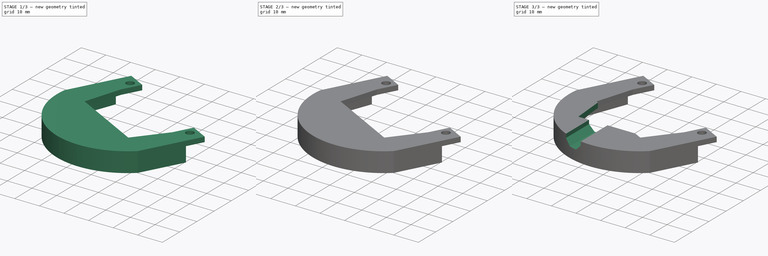
[diagram: build sequence overview — one tinted view per stage of 3, left to right]
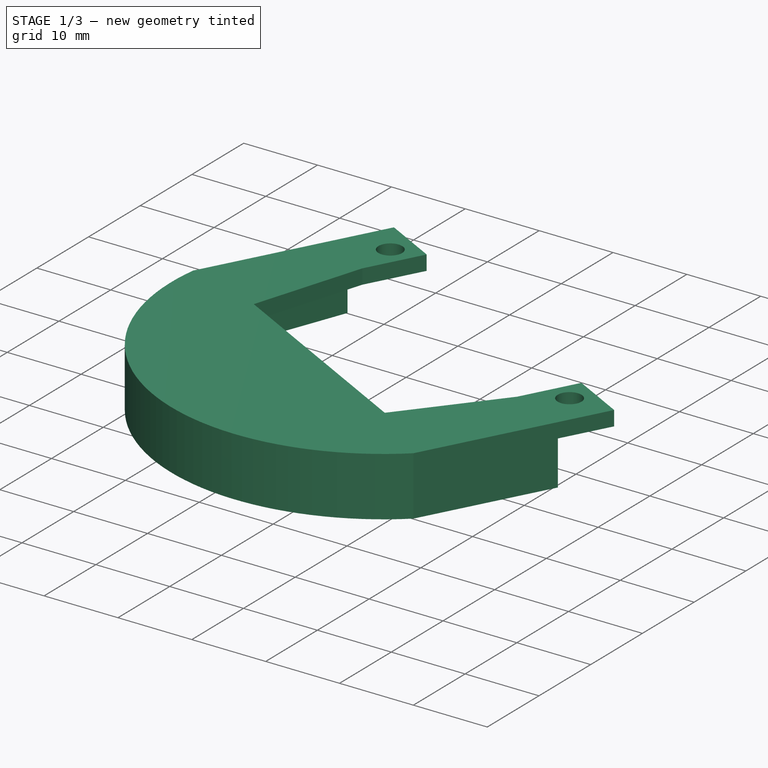
[diagram: stage 1 of 3 — iso view after this stage's code; geometry added in this stage tinted green]
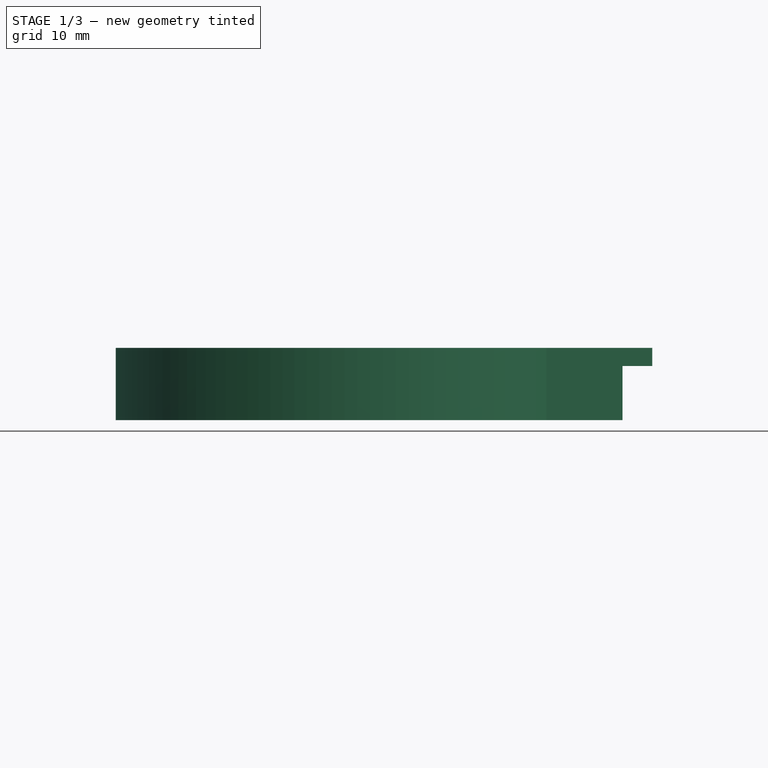
[diagram: stage 1 of 3 — front view after this stage's code; geometry added in this stage tinted green]
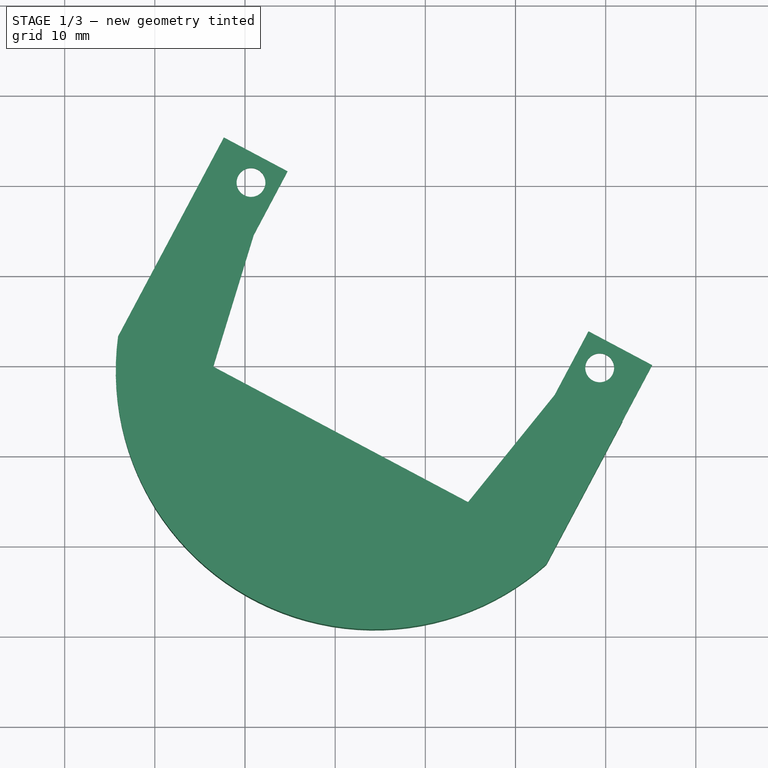
[diagram: stage 1 of 3 — top view after this stage's code; geometry added in this stage tinted green]
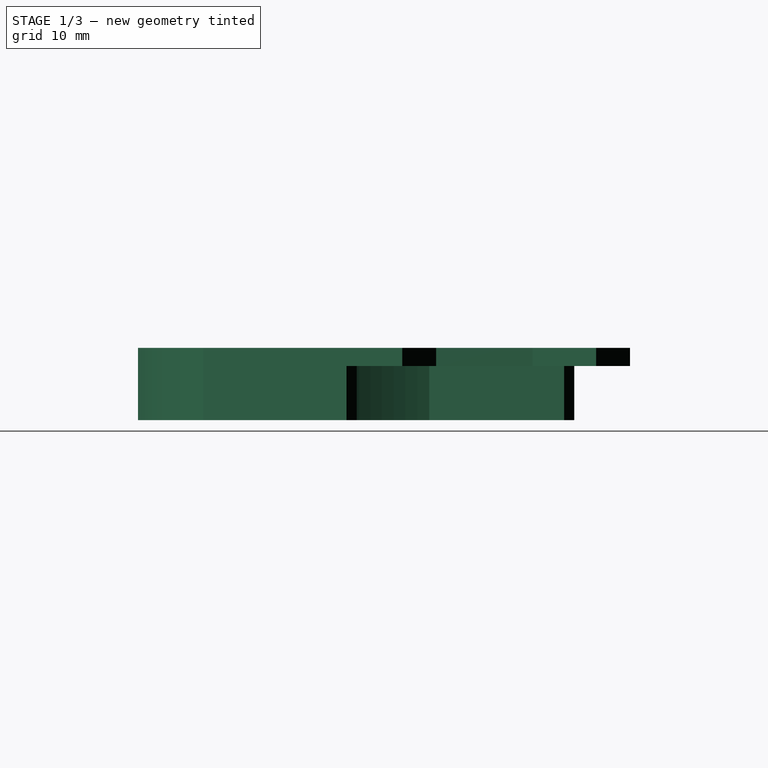
[diagram: stage 1 of 3 — right view after this stage's code; geometry added in this stage tinted green]
FCSTD DOCUMENT  (FreeCAD 0.19R)
Label: UmbilicalStrainReleif2
License: All rights reserved
LicenseURL: http://en.wikipedia.org/wiki/All_rights_reserved
objects: Sketcher::SketchObject×5, PartDesign::Pocket×3, PartDesign::Pad×2, PartDesign::Body×1
note: 16 computed .brp shape members not serialized (recipe doc carries the construction recipe); baked Part::Feature solids carry a one-line shape summary decoded from their .brp

FEATURE [Sketcher::SketchObject] Sketch
  FullyConstrained = false
  MapMode = 5
  Placement = pos=(0,4e-14,34.3878) rot=(0,0,1;3.14159rad)
  sketch-geometry (14):
    g0: Circle CenterX=-19.3366 CenterY=10.2814 CenterZ=0 NormalX=0 NormalY=0 NormalZ=1 AngleXU=0 Radius=1.6
    g1: Circle CenterX=19.3366 CenterY=-10.2814 CenterZ=0 NormalX=0 NormalY=0 NormalZ=1 AngleXU=0 Radius=1.6
    g2: LineSegment StartX=-19.3366 StartY=10.2814 StartZ=0 EndX=19.3366 EndY=-10.2814 EndZ=0
    g3: LineSegment StartX=-25.1597 StartY=9.97994 StartZ=0 EndX=-13.4229 EndY=32.0536 EndZ=0
    g4: LineSegment StartX=34.0797 StartY=6.79606 StartZ=0 EndX=22.3429 EndY=-15.2776 EndZ=0
    g5: LineSegment StartX=22.3429 StartY=-15.2776 StartZ=0 EndX=15.2793 EndY=-11.5219 EndZ=0
    g6: LineSegment StartX=23.5166 StartY=10.1474 StartZ=0 EndX=-4.73773 EndY=25.1705 EndZ=0
    g7: LineSegment StartX=-18.0961 StartY=6.22417 StartZ=0 EndX=-25.1597 EndY=9.97994 EndZ=0
    g8: LineSegment StartX=15.2793 StartY=-11.5219 StartZ=0 EndX=19.0351 EndY=-4.45827 EndZ=0
    g9: LineSegment StartX=19.0351 StartY=-4.45827 StartZ=0 EndX=23.5166 EndY=10.1474 EndZ=0
    g10: LineSegment StartX=-18.0961 StartY=6.22417 StartZ=0 EndX=-14.3404 EndY=13.2878 EndZ=0
    g11: LineSegment StartX=-14.3404 StartY=13.2878 StartZ=0 EndX=-4.73773 EndY=25.1705 EndZ=0
    g12: LineSegment StartX=0 StartY=0 StartZ=0 EndX=21.8903 EndY=41.1697 EndZ=0
    g13: ArcOfCircle CenterX=5.63366 CenterY=10.5954 CenterZ=0 NormalX=0 NormalY=0 NormalZ=1 AngleXU=0 Radius=28.6986 StartAngle=6.15041 EndAngle=8.58017
  constraints (38):
    c: Distance(g1,g0) = 43.8
    c: Symmetric(g1,g0,g-1)
    c: Coincident(g2,g0)
    c: Coincident(g2,g1)
    c: Angle(g2) = -0.488692
    c: Coincident(g4,g5)
    c: Coincident(g7,g3)
    c: Diameter(g1) = 3.2
    c: Equal(g1,g0)
    c: Distance(g1,g5) = 3
    c: Distance(g0,g7) = 3
    c: Parallel(g5,g2)
    c: Parallel(g7,g2)
    c: Distance(g5) = 8
    c: Distance(g7) = 8
    c: Parallel(g6,g2)
    c: Distance(g6,g2) = 20
    c: Coincident(g5,g8)
    c: Coincident(g8,g9)
    c: Coincident(g9,g6)
    c: Coincident(g7,g10)
    c: Coincident(g10,g11)
    c: Coincident(g11,g6)
    c: Coincident(g12,g-1)
    c: Symmetric(g6,g6,g12)
    c: Distance(g6) = 32
    c: Perpendicular(g2,g8)
    c: Perpendicular(g2,g10)
    c: Distance(g1,g8) = 3
    c: Distance(g0,g10) = 3
    c: Symmetric(g4,g3,g12)
    c: Distance(g10) = 8
    c: Distance(g8) = 8
    c: Perpendicular(g2,g4)
    c: Distance(g4) = 25
    c: Coincident(g13,g3)
    c: Coincident(g4,g13)
    c: Distance(g-1,g13) = 12
FEATURE [PartDesign::Pad] Pad
  Direction = (1,1,1)
  Length = 8
  Length2 = 100
  Placement = pos=(0,4e-14,34.3878) rot=(0,0,1;3.14159rad)
  Profile = -> Sketch
  Type = 0
FEATURE [Sketcher::SketchObject] Sketch001
  FullyConstrained = true
  MapMode = 5
  Placement = pos=(0,4e-14,34.3878) rot=(0,1,0;3.14159rad)
  Support = -> [Pad]
  sketch-geometry (4):
    g0: LineSegment StartX=5 StartY=-22 StartZ=0 EndX=23 EndY=-22 EndZ=0
    g1: LineSegment StartX=23 StartY=-22 StartZ=0 EndX=23 EndY=-32 EndZ=0
    g2: LineSegment StartX=23 StartY=-32 StartZ=0 EndX=5 EndY=-32 EndZ=0
    g3: LineSegment StartX=5 StartY=-32 StartZ=0 EndX=5 EndY=-22 EndZ=0
  constraints (12):
    c: Coincident(g0,g1)
    c: Coincident(g1,g2)
    c: Coincident(g2,g3)
    c: Coincident(g3,g0)
    c: Horizontal(g0)
    c: Horizontal(g2)
    c: Vertical(g1)
    c: Vertical(g3)
    c: Distance(g0) = 18
    c: Distance(g1) = 10
    c: DistanceX(g0) = 5
    c: DistanceY(g0) = -22
FEATURE [Sketcher::SketchObject] Sketch004
  ExternalGeometry = -> [Pad]
  FullyConstrained = true
  MapMode = 5
  Placement = pos=(0,4e-14,34.3878) rot=(0,1,0;3.14159rad)
  sketch-geometry (10):
    g0: ArcOfCircle CenterX=1.87789 CenterY=-3.53179 CenterZ=0 NormalX=0 NormalY=0 NormalZ=1 AngleXU=0 Radius=27.5363 StartAngle=4.24472 EndAngle=6.15745
    g1: LineSegment StartX=23.5101 StartY=7.97026 StartZ=0 EndX=29.1968 EndY=-6.98504 EndZ=0
    g2: LineSegment StartX=-19.7543 StartY=-15.0338 StartZ=0 EndX=-10.5358 EndY=-28.1113 EndZ=0
    g3: LineSegment StartX=23.5101 StartY=7.97026 StartZ=0 EndX=33.7655 EndY=13.4232 EndZ=0
    g4: LineSegment StartX=33.7655 StartY=13.4232 StartZ=0 EndX=24.3761 EndY=31.0821 EndZ=0
    g5: LineSegment StartX=24.3761 StartY=31.0821 StartZ=0 EndX=-39.3992 EndY=-2.8278 EndZ=0
    g6: LineSegment StartX=-39.3992 StartY=-2.8278 StartZ=0 EndX=-30.0098 EndY=-20.4868 EndZ=0
    g7: LineSegment StartX=-30.0098 StartY=-20.4868 StartZ=0 EndX=-19.7543 EndY=-15.0338 EndZ=0
    g8: LineSegment StartX=0 StartY=0 StartZ=0 EndX=22.3656 EndY=-42.0636 EndZ=0
    g9: LineSegment StartX=-19.3366 StartY=-10.2814 StartZ=0 EndX=19.3366 EndY=10.2814 EndZ=0
  constraints (27):
    c: Coincident(g1,g0)
    c: Coincident(g2,g0)
    c: Coincident(g1,g3)
    c: Coincident(g3,g4)
    c: Coincident(g4,g5)
    c: Coincident(g5,g6)
    c: Coincident(g6,g7)
    c: Coincident(g7,g2)
    c: Symmetric(g2,g1,g0)
    c: Coincident(g8,g-1)
    c: Coincident(g9,g-3)
    c: Coincident(g9,g-4)
    c: Perpendicular(g9,g8)
    c: Parallel(g7,g9)
    c: Symmetric(g0,g0,g8)
    c: Distance(g0,g0) = 45
    c: Distance(g2) = 16
    c: Symmetric(g1,g2,g8)
    c: Distance(g1,g2) = 49
    c: Distance(g1,g9) = 4
    c: Symmetric(g3,g6,g8)
    c: Parallel(g5,g9)
    c: Perpendicular(g4,g3)
    c: Perpendicular(g6,g7)
    c: Distance(g6) = 20
    c: Distance(g5) = 72.23
    c: Distance(g8) = 47.64
FEATURE [PartDesign::Pocket] Pocket
  BaseFeature = -> Pad
  Length = 6
  Length2 = 100
  Placement = pos=(0,4e-14,34.3878) rot=(0,0,1;3.14159rad)
  Profile = -> Sketch004
  Type = 0
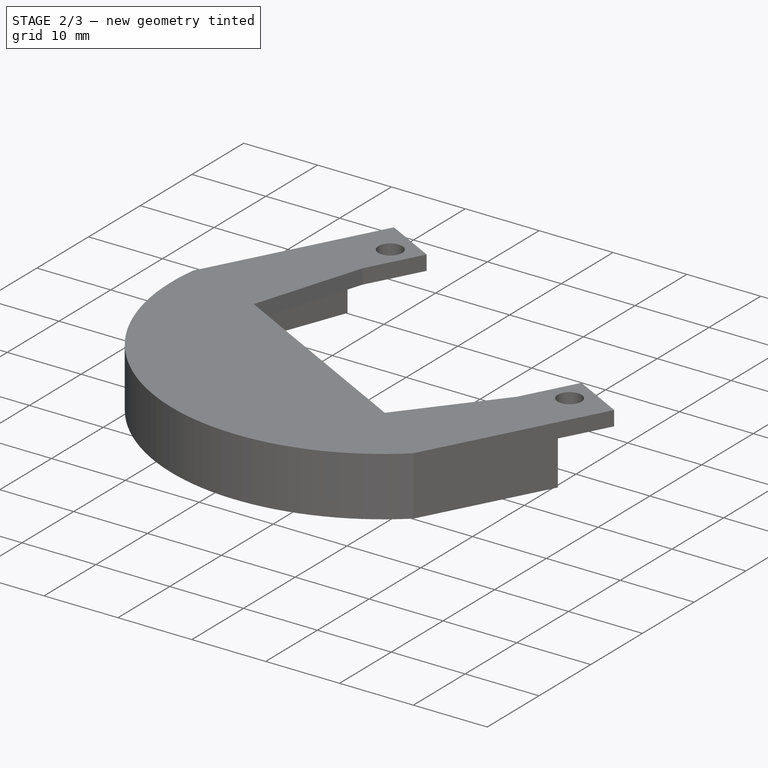
[diagram: stage 2 of 3 — iso view after this stage's code; geometry added in this stage tinted green]
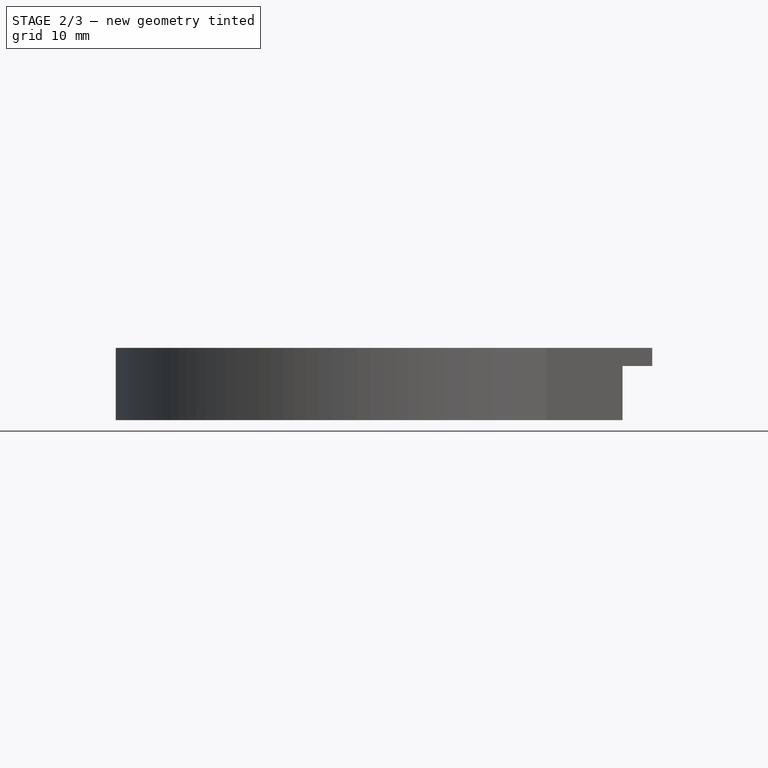
[diagram: stage 2 of 3 — front view after this stage's code; geometry added in this stage tinted green]
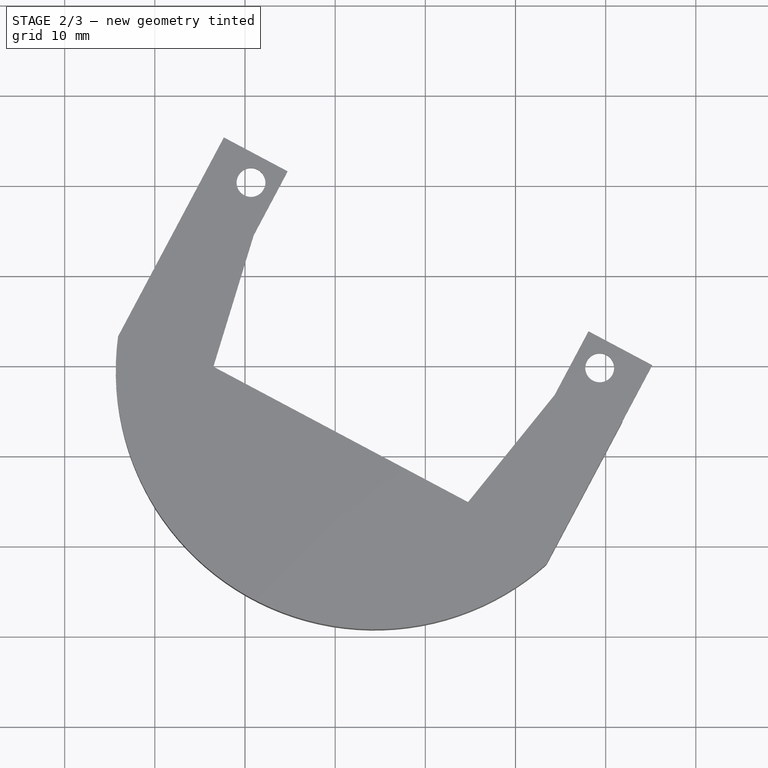
[diagram: stage 2 of 3 — top view after this stage's code; geometry added in this stage tinted green]
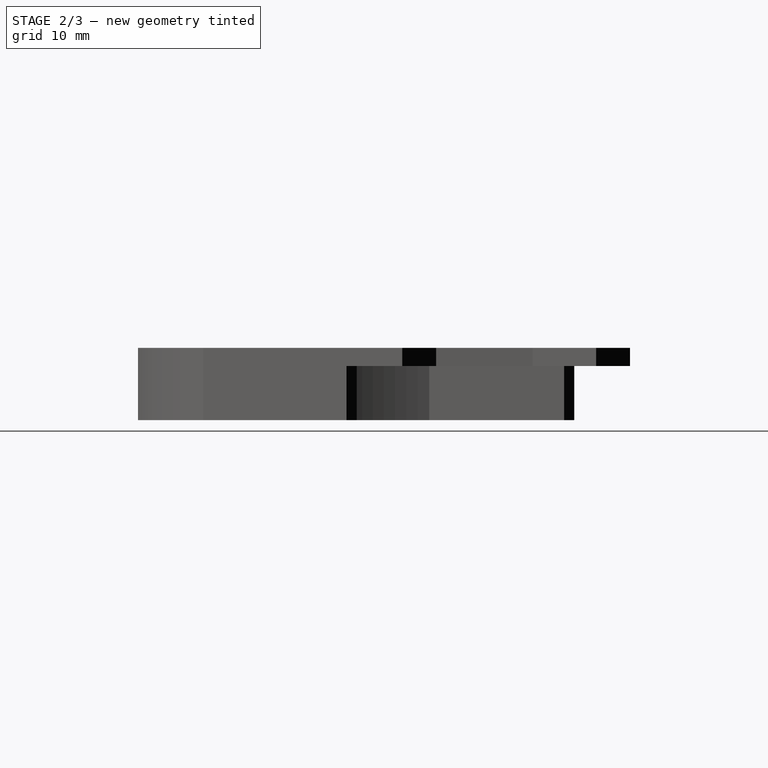
[diagram: stage 2 of 3 — right view after this stage's code; geometry added in this stage tinted green]
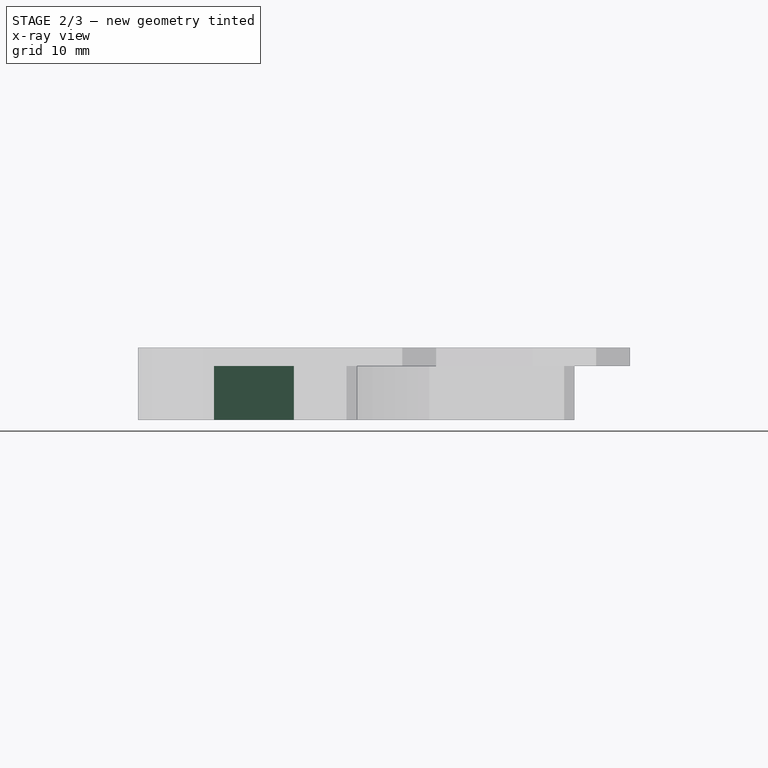
[diagram: stage 2 of 3 — x-ray composite at the right view; earlier geometry ghosted, this stage's added geometry solid]
FEATURE [PartDesign::Pad] Pad001
  BaseFeature = -> Pocket
  Direction = (1,1,1)
  Length = 8
  Length2 = 100
  Placement = pos=(0,4e-14,34.3878) rot=(0,0,1;3.14159rad)
  Profile = -> Sketch001
  Reversed = true
  Type = 0
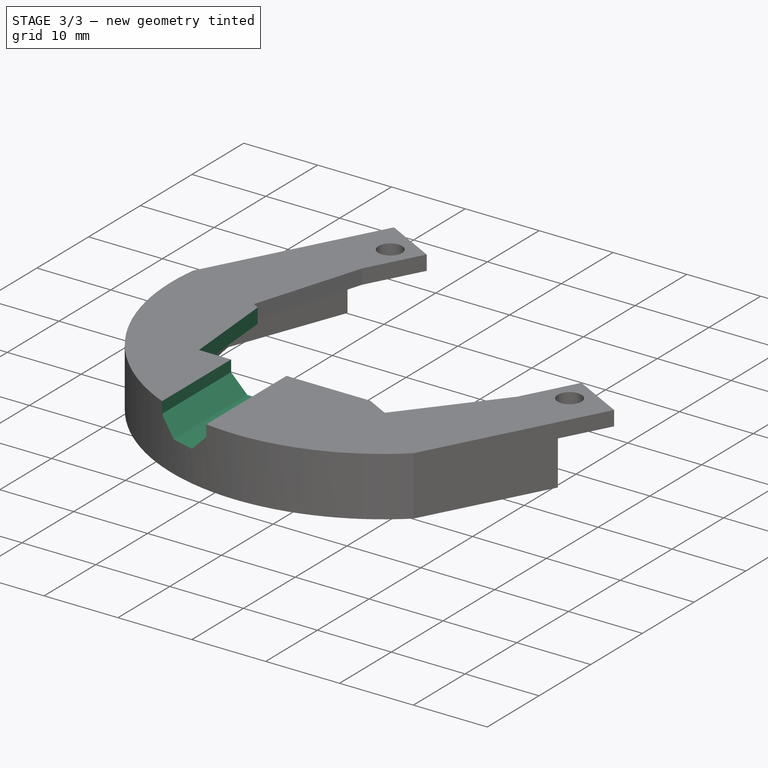
[diagram: stage 3 of 3 — iso view after this stage's code; geometry added in this stage tinted green]
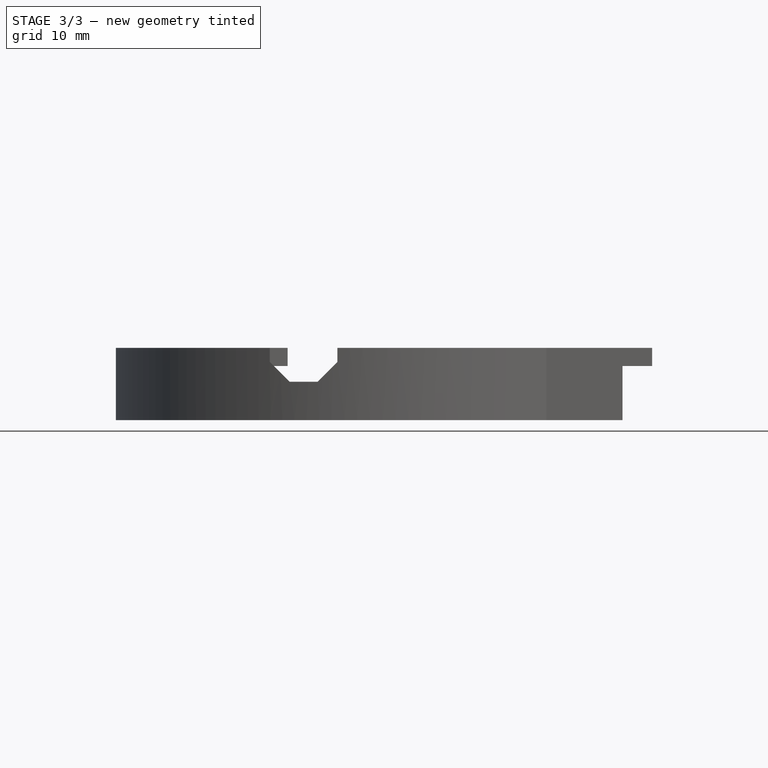
[diagram: stage 3 of 3 — front view after this stage's code; geometry added in this stage tinted green]
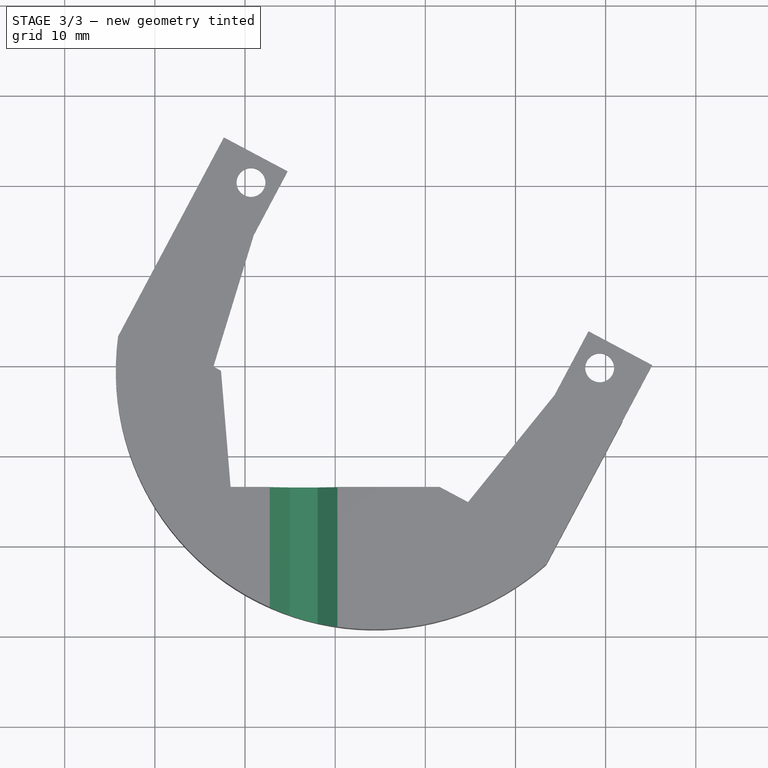
[diagram: stage 3 of 3 — top view after this stage's code; geometry added in this stage tinted green]
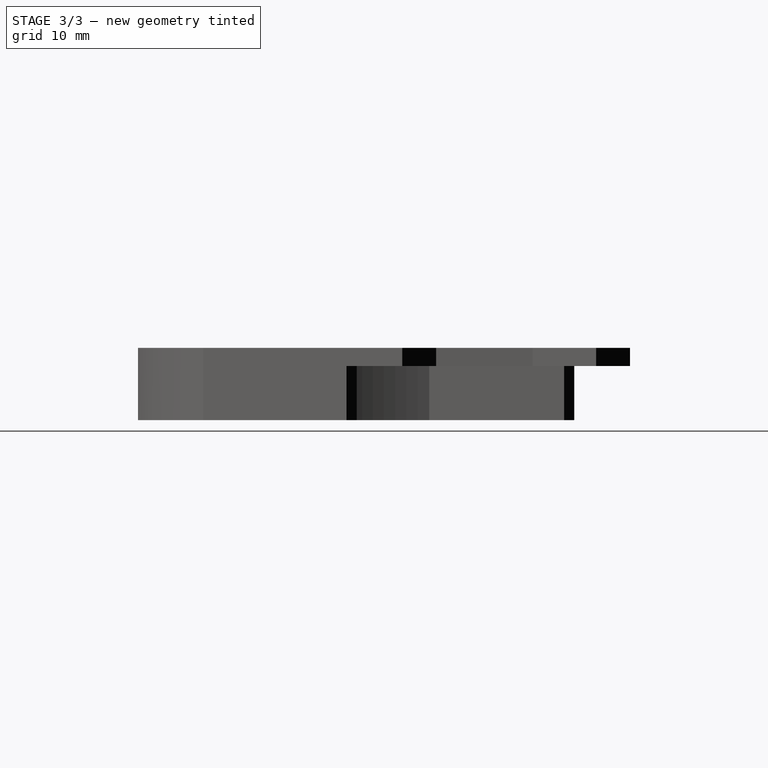
[diagram: stage 3 of 3 — right view after this stage's code; geometry added in this stage tinted green]
FEATURE [Sketcher::SketchObject] Sketch006
  FullyConstrained = true
  MapMode = 5
  Placement = pos=(2.6e-15,-22,34.3878) rot=(0,0.707107,0.707107;3.14159rad)
  Support = -> [Pad001]
  sketch-geometry (7):
    g0: Circle CenterX=13.5 CenterY=8 CenterZ=0 NormalX=0 NormalY=0 NormalZ=1 AngleXU=0 Radius=3.75
    g1: LineSegment StartX=11.9467 StartY=4.25 StartZ=0 EndX=15.0533 EndY=4.25 EndZ=0
    g2: LineSegment StartX=15.0533 StartY=4.25 StartZ=0 EndX=17.25 EndY=6.4467 EndZ=0
    g3: LineSegment StartX=17.25 StartY=6.4467 StartZ=0 EndX=17.25 EndY=9.4467 EndZ=0
    g4: LineSegment StartX=17.25 StartY=9.4467 StartZ=0 EndX=9.75 EndY=9.4467 EndZ=0
    g5: LineSegment StartX=9.75 StartY=9.4467 StartZ=0 EndX=9.75 EndY=6.4467 EndZ=0
    g6: LineSegment StartX=9.75 StartY=6.4467 StartZ=0 EndX=11.9467 EndY=4.25 EndZ=0
  constraints (21):
    c: Diameter(g0) = 7.5
    c: DistanceY(g0) = 8
    c: DistanceX(g0) = 13.5
    c: Horizontal(g1)
    c: Tangent(g1,g0)
    c: Coincident(g1,g2)
    c: Coincident(g2,g3)
    c: Vertical(g3)
    c: Tangent(g3,g0)
    c: Coincident(g3,g4)
    c: Coincident(g4,g5)
    c: Vertical(g5)
    c: Coincident(g5,g6)
    c: Coincident(g6,g1)
    c: Horizontal(g4)
    c: Equal(g5,g3)
    c: Equal(g2,g6)
    c: Equal(g1,g2)
    c: Angle(g2) = 0.785398
    c: Distance(g4) = 7.5
    c: Distance(g3) = 3
FEATURE [PartDesign::Pocket] Pocket001
  BaseFeature = -> Pad001
  Length = 34
  Length2 = 12
  Placement = pos=(0,4e-14,34.3878) rot=(0,0,1;3.14159rad)
  Profile = -> Sketch006
  Type = 4
FEATURE [Sketcher::SketchObject] Sketch007
  FullyConstrained = false
  MapMode = 5
  Placement = pos=(1e-16,4.94e-14,42.3878) rot=(0,0,1;3.14159rad)
  Support = -> [Pocket001]
  sketch-geometry (3):
    g0: LineSegment StartX=-3.52213 StartY=23.4904 StartZ=0 EndX=21.5979 EndY=23.4904 EndZ=0
    g1: LineSegment StartX=21.5979 StartY=23.4904 StartZ=0 EndX=22.7514 EndY=9.52057 EndZ=0
    g2: LineSegment StartX=22.7514 StartY=9.52057 StartZ=0 EndX=-3.52213 EndY=23.4904 EndZ=0
  constraints (4):
    c: Horizontal(g0)
    c: Coincident(g0,g1)
    c: Coincident(g1,g2)
    c: Coincident(g2,g0)
FEATURE [PartDesign::Pocket] Pocket002
  BaseFeature = -> Pocket001
  Length = 5
  Length2 = 100
  Placement = pos=(0,4e-14,34.3878) rot=(0,0,1;3.14159rad)
  Profile = -> Sketch007
  Type = 1
FEATURE [PartDesign::Body] Body
  Group = -> [Sketch,Pad,Sketch001,Sketch004,Pocket,Pad001,Sketch006,Pocket001,Sketch007,Pocket002]
  Origin = -> Origin
  Tip = -> Pocket002
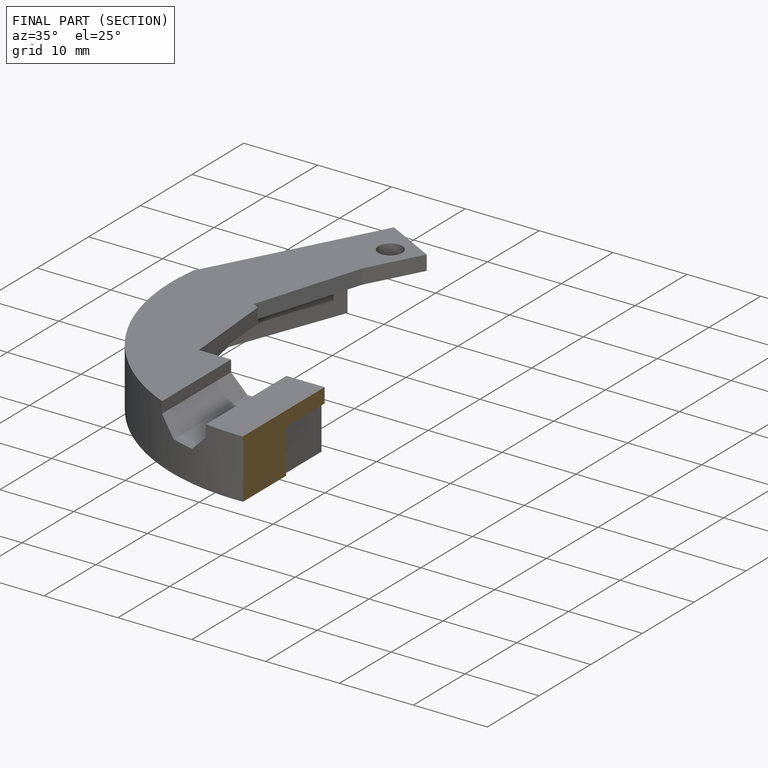
[diagram: finished part — half-section view (interior)]
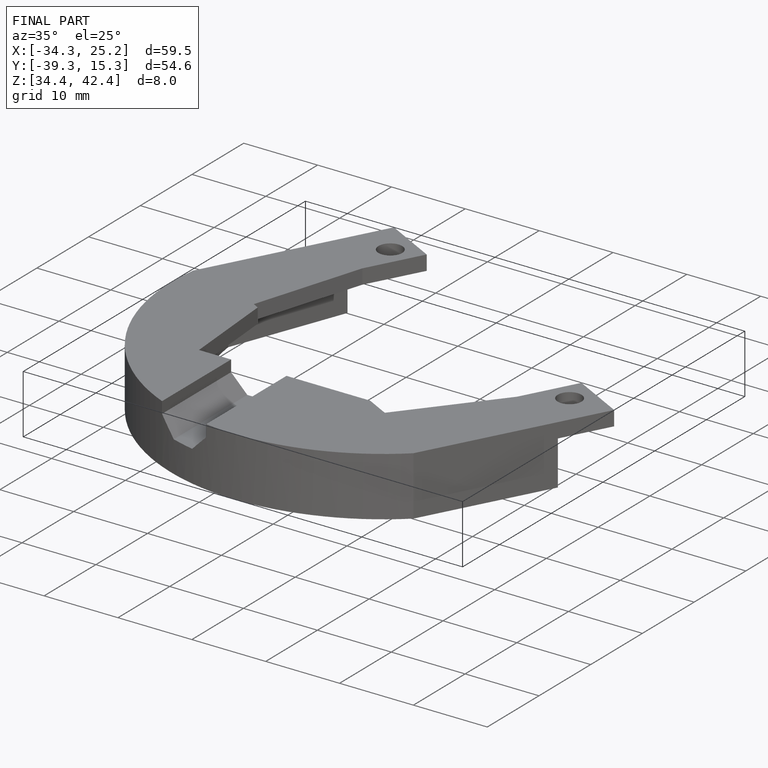
[diagram: finished part — iso view with bounding-box wireframe]
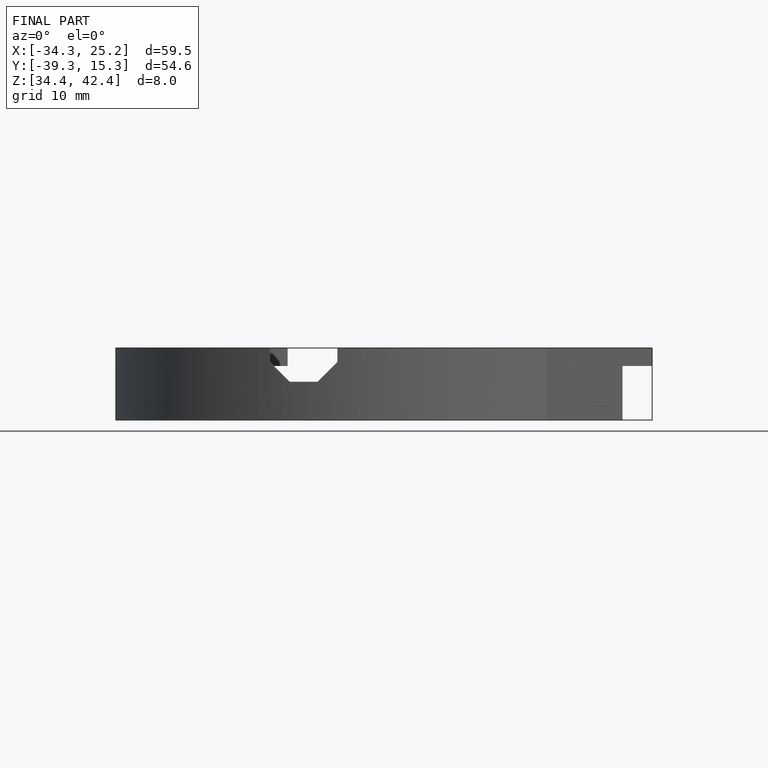
[diagram: finished part — front view with bounding-box wireframe]
